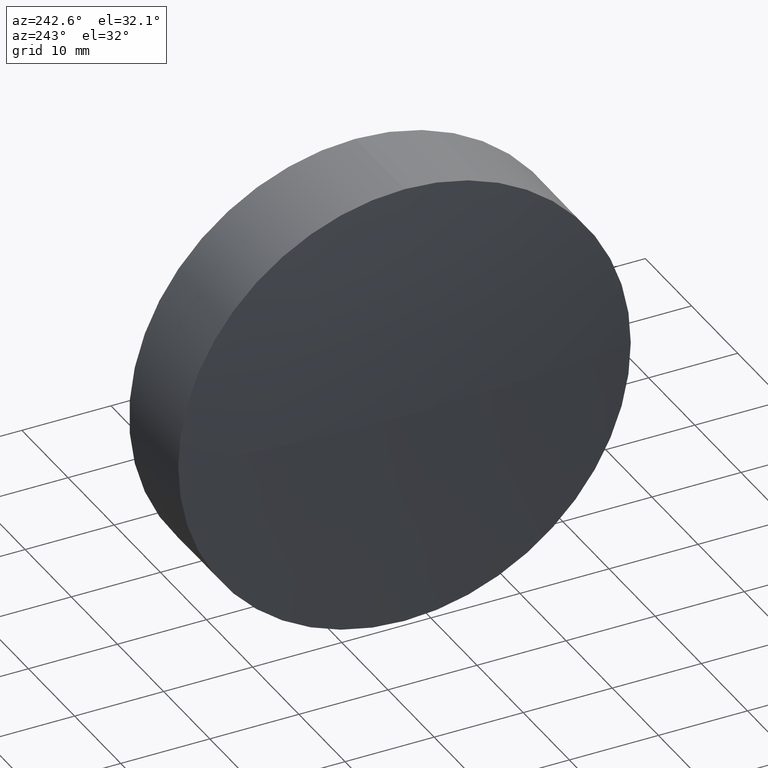
[diagram: clean part render]
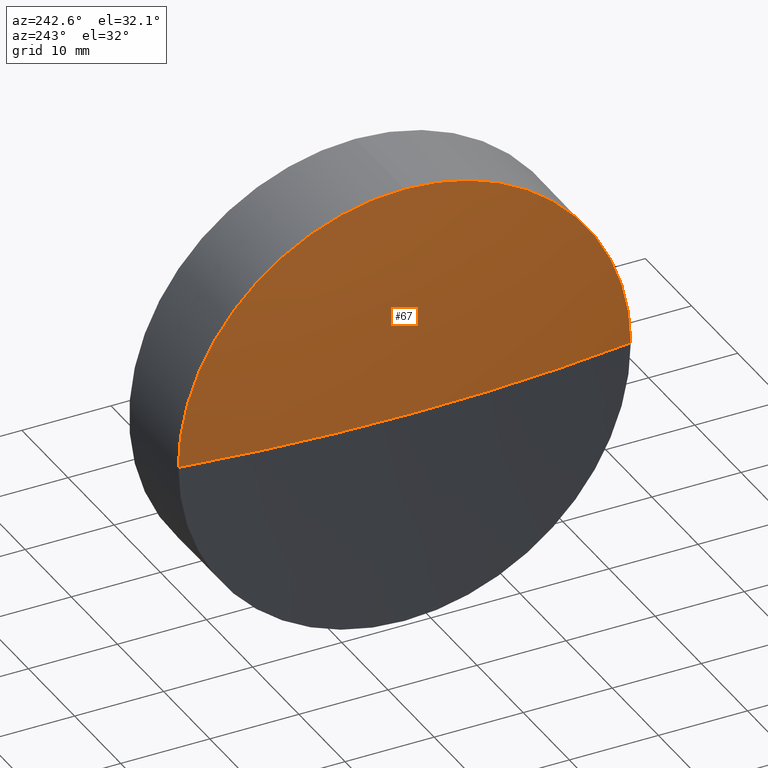
[diagram: same view with one face highlighted and labeled with its STEP entity id]
A machine part, auxiliary view. The second image highlights one B-rep face of the part: STEP entity #67.
In plain terms, the highlighted spherical surface has radius 184.25 mm.
Its self-contained STEP definition (entity closure, byte-faithful):
#2 = EDGE_CURVE ( 'NONE', #385, #277, #74, .T. ) ;
#5 = SPHERICAL_SURFACE ( 'NONE', #248, 184.2500000000000000 ) ;
#50 = EDGE_CURVE ( 'NONE', #120, #385, #287, .T. ) ;
#67 = ADVANCED_FACE ( 'NONE', ( #133 ), #5, .T. ) ;
#69 = EDGE_CURVE ( 'NONE', #327, #120, #231, .T. ) ;
#70 = DIRECTION ( 'NONE',  ( 0.000000000000000000, 1.000000000000000000, 1.224646799147352961E-16 ) ) ;
#74 = CIRCLE ( 'NONE', #321, 184.2500000000000000 ) ;
#89 = CARTESIAN_POINT ( 'NONE',  ( 151.6477093542552836, 13.39555463349441311, 0.000000000000000000 ) ) ;
#100 = DIRECTION ( 'NONE',  ( -1.000000000000000000, -0.000000000000000000, -0.000000000000000000 ) ) ;
#117 = AXIS2_PLACEMENT_3D ( 'NONE', #285, #228, #70 ) ;
#120 = VERTEX_POINT ( 'NONE', #165 ) ;
#128 = DIRECTION ( 'NONE',  ( 0.000000000000000000, 1.000000000000000000, 0.000000000000000000 ) ) ;
#130 = EDGE_CURVE ( 'NONE', #327, #277, #169, .T. ) ;
#133 = FACE_OUTER_BOUND ( 'NONE', #172, .T. ) ;
#150 = CARTESIAN_POINT ( 'NONE',  ( -30.84311918241391837, -12.00444536650557303, -3.110602869834275682E-15 ) ) ;
#165 = CARTESIAN_POINT ( 'NONE',  ( -30.84311918241391837, 13.39555463349441311, 25.39999999999999858 ) ) ;
#169 = CIRCLE ( 'NONE', #117, 184.2500000000000284 ) ;
#170 = ORIENTED_EDGE ( 'NONE', *, *, #2, .T. ) ;
#172 = EDGE_LOOP ( 'NONE', ( #322, #400, #262, #170 ) ) ;
#190 = CARTESIAN_POINT ( 'NONE',  ( 151.6477093542552836, 13.39555463349441311, 0.000000000000000000 ) ) ;
#212 = DIRECTION ( 'NONE',  ( -0.000000000000000000, 0.000000000000000000, 1.000000000000000000 ) ) ;
#228 = DIRECTION ( 'NONE',  ( 0.000000000000000000, 1.224646799147353207E-16, -1.000000000000000000 ) ) ;
#231 = CIRCLE ( 'NONE', #266, 25.39999999999999858 ) ;
#246 = CARTESIAN_POINT ( 'NONE',  ( -30.84311918241391837, 13.39555463349441311, 0.000000000000000000 ) ) ;
#247 = DIRECTION ( 'NONE',  ( -0.000000000000000000, 0.000000000000000000, -1.000000000000000000 ) ) ;
#248 = AXIS2_PLACEMENT_3D ( 'NONE', #190, #247, #128 ) ;
#262 = ORIENTED_EDGE ( 'NONE', *, *, #50, .T. ) ;
#266 = AXIS2_PLACEMENT_3D ( 'NONE', #246, #310, #313 ) ;
#268 = CARTESIAN_POINT ( 'NONE',  ( -32.60229064574471636, 13.39555463349442554, 0.000000000000000000 ) ) ;
#277 = VERTEX_POINT ( 'NONE', #268 ) ;
#285 = CARTESIAN_POINT ( 'NONE',  ( 151.6477093542552836, 13.39555463349441311, 0.000000000000000000 ) ) ;
#287 = CIRCLE ( 'NONE', #379, 25.39999999999999858 ) ;
#310 = DIRECTION ( 'NONE',  ( -1.000000000000000000, -0.000000000000000000, -0.000000000000000000 ) ) ;
#313 = DIRECTION ( 'NONE',  ( 0.000000000000000000, 0.000000000000000000, 1.000000000000000000 ) ) ;
#321 = AXIS2_PLACEMENT_3D ( 'NONE', #89, #212, #339 ) ;
#322 = ORIENTED_EDGE ( 'NONE', *, *, #130, .F. ) ;
#327 = VERTEX_POINT ( 'NONE', #150 ) ;
#339 = DIRECTION ( 'NONE',  ( 1.000000000000000000, 0.000000000000000000, 0.000000000000000000 ) ) ;
#353 = DIRECTION ( 'NONE',  ( 0.000000000000000000, 0.000000000000000000, 1.000000000000000000 ) ) ;
#378 = CARTESIAN_POINT ( 'NONE',  ( -30.84311918241391837, 13.39555463349441311, 0.000000000000000000 ) ) ;
#379 = AXIS2_PLACEMENT_3D ( 'NONE', #378, #100, #353 ) ;
#385 = VERTEX_POINT ( 'NONE', #401 ) ;
#400 = ORIENTED_EDGE ( 'NONE', *, *, #69, .T. ) ;
#401 = CARTESIAN_POINT ( 'NONE',  ( -30.84311918241391837, 38.79555463349440458, 0.000000000000000000 ) ) ;